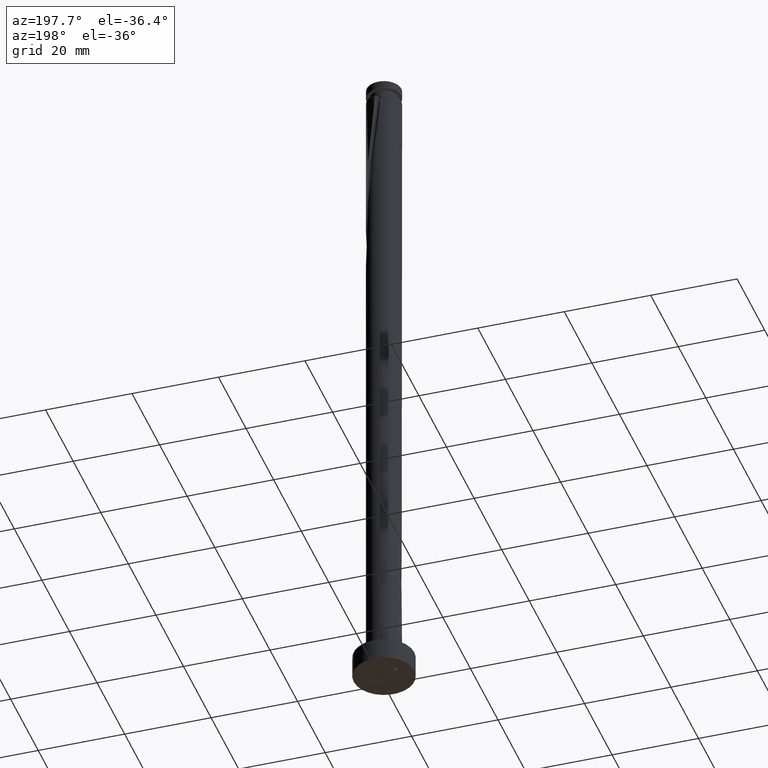
[diagram: clean part render]
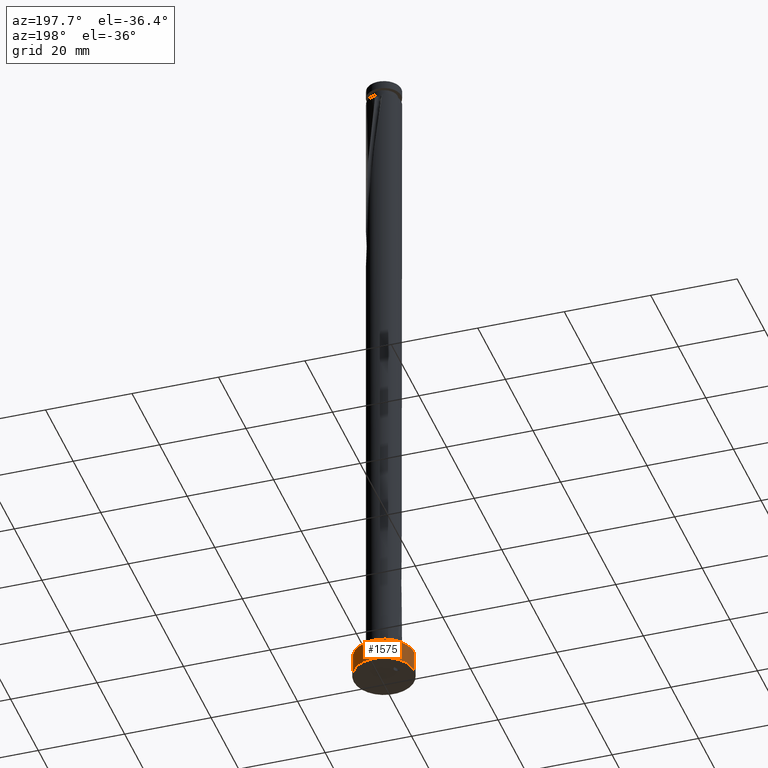
[diagram: same view with one face highlighted and labeled with its STEP entity id]
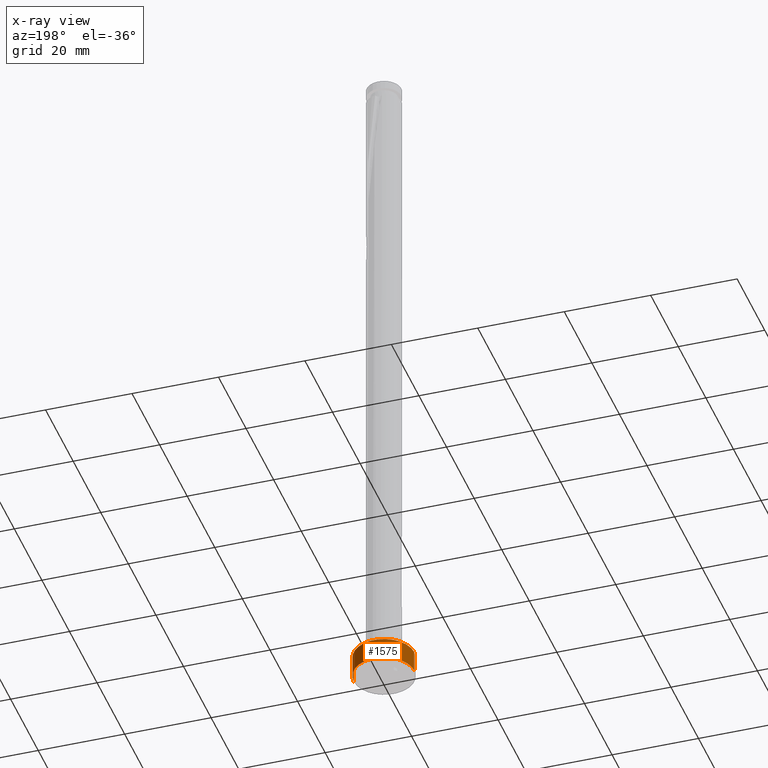
[diagram: x-ray of the same camera — body ghosted, the highlighted face saturated]
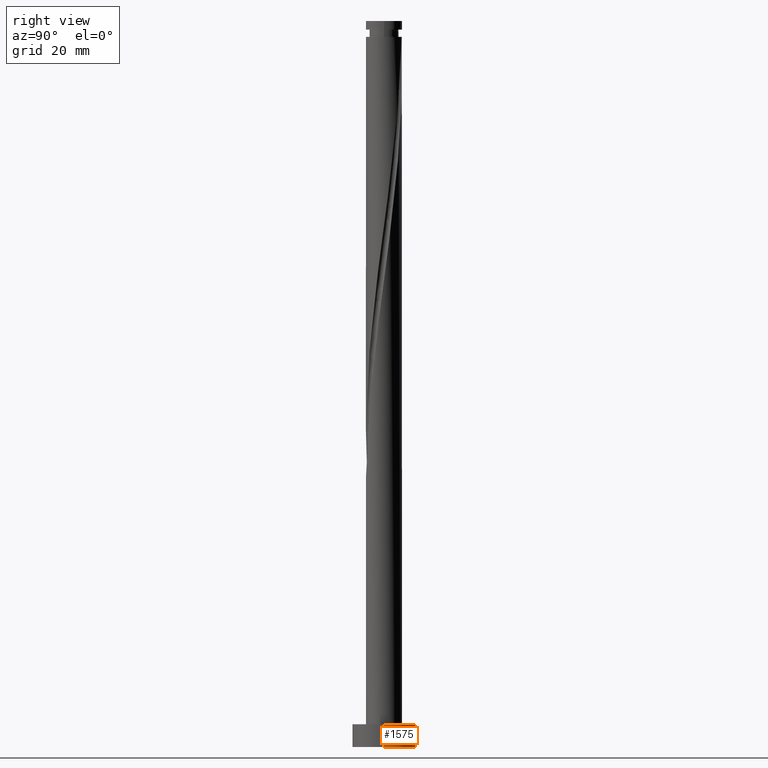
[diagram: same view with one face highlighted and labeled with its STEP entity id]
A machine part, auxiliary view. The second image highlights one B-rep face of the part: STEP entity #1575.
The next image is the same camera in x-ray: the body ghosted, the highlighted face saturated — about 0% of this face is hidden behind the body in this view.
A second angle (right view) of the same face is appended — the face is thin or edge-on in the first view.
In plain terms, the highlighted cylindrical surface (edge-blend (fillet) strip) has radius 7 mm, axis along (-0, -0, -1).
Its self-contained STEP definition (entity closure, byte-faithful):
#149 = DIRECTION ( 'NONE',  ( 1.000000000000000000, 0.000000000000000000, 0.000000000000000000 ) ) ;
#358 = CARTESIAN_POINT ( 'NONE',  ( 0.000000000000000000, 0.000000000000000000, 0.000000000000000000 ) ) ;
#411 = CARTESIAN_POINT ( 'NONE',  ( -7.000000000000000000, 0.000000000000000000, 0.000000000000000000 ) ) ;
#423 = LINE ( 'NONE', #649, #464 ) ;
#457 = VERTEX_POINT ( 'NONE', #411 ) ;
#464 = VECTOR ( 'NONE', #1718, 1000.000000000000000 ) ;
#594 = DIRECTION ( 'NONE',  ( 0.000000000000000000, 0.000000000000000000, 1.000000000000000000 ) ) ;
#597 = VECTOR ( 'NONE', #794, 1000.000000000000000 ) ;
#641 = EDGE_CURVE ( 'NONE', #2474, #1823, #1790, .T. ) ;
#649 = CARTESIAN_POINT ( 'NONE',  ( -7.000000000000000000, 0.000000000000000000, 5.000000000000000000 ) ) ;
#675 = EDGE_CURVE ( 'NONE', #2474, #2464, #2512, .T. ) ;
#688 = CIRCLE ( 'NONE', #826, 7.000000000000000000 ) ;
#777 = AXIS2_PLACEMENT_3D ( 'NONE', #2085, #2458, #1229 ) ;
#794 = DIRECTION ( 'NONE',  ( -0.000000000000000000, -0.000000000000000000, -1.000000000000000000 ) ) ;
#818 = EDGE_CURVE ( 'NONE', #2464, #457, #688, .T. ) ;
#826 = AXIS2_PLACEMENT_3D ( 'NONE', #358, #594, #149 ) ;
#1048 = CYLINDRICAL_SURFACE ( 'NONE', #2493, 7.000000000000000000 ) ;
#1061 = DIRECTION ( 'NONE',  ( -0.000000000000000000, -0.000000000000000000, -1.000000000000000000 ) ) ;
#1141 = EDGE_LOOP ( 'NONE', ( #1720, #2271, #1433, #2420 ) ) ;
#1157 = EDGE_CURVE ( 'NONE', #1823, #457, #423, .T. ) ;
#1229 = DIRECTION ( 'NONE',  ( 1.000000000000000000, 0.000000000000000000, 0.000000000000000000 ) ) ;
#1433 = ORIENTED_EDGE ( 'NONE', *, *, #818, .T. ) ;
#1557 = CARTESIAN_POINT ( 'NONE',  ( 7.000000000000000000, 8.572527594031473190E-16, 5.000000000000000000 ) ) ;
#1575 = ADVANCED_FACE ( 'NONE', ( #2357 ), #1048, .T. ) ;
#1718 = DIRECTION ( 'NONE',  ( -0.000000000000000000, -0.000000000000000000, -1.000000000000000000 ) ) ;
#1720 = ORIENTED_EDGE ( 'NONE', *, *, #641, .F. ) ;
#1790 = CIRCLE ( 'NONE', #777, 7.000000000000000000 ) ;
#1823 = VERTEX_POINT ( 'NONE', #2640 ) ;
#2085 = CARTESIAN_POINT ( 'NONE',  ( 0.000000000000000000, 0.000000000000000000, 5.000000000000000000 ) ) ;
#2109 = CARTESIAN_POINT ( 'NONE',  ( 0.000000000000000000, 0.000000000000000000, 5.000000000000000000 ) ) ;
#2152 = DIRECTION ( 'NONE',  ( -1.000000000000000000, 0.000000000000000000, 0.000000000000000000 ) ) ;
#2271 = ORIENTED_EDGE ( 'NONE', *, *, #675, .T. ) ;
#2357 = FACE_OUTER_BOUND ( 'NONE', #1141, .T. ) ;
#2420 = ORIENTED_EDGE ( 'NONE', *, *, #1157, .F. ) ;
#2458 = DIRECTION ( 'NONE',  ( 0.000000000000000000, 0.000000000000000000, 1.000000000000000000 ) ) ;
#2464 = VERTEX_POINT ( 'NONE', #2578 ) ;
#2474 = VERTEX_POINT ( 'NONE', #1557 ) ;
#2475 = CARTESIAN_POINT ( 'NONE',  ( 7.000000000000000000, 8.572527594031473190E-16, 5.000000000000000000 ) ) ;
#2493 = AXIS2_PLACEMENT_3D ( 'NONE', #2109, #1061, #2152 ) ;
#2512 = LINE ( 'NONE', #2475, #597 ) ;
#2578 = CARTESIAN_POINT ( 'NONE',  ( 7.000000000000000000, 8.572527594031473190E-16, 0.000000000000000000 ) ) ;
#2640 = CARTESIAN_POINT ( 'NONE',  ( -7.000000000000000000, 0.000000000000000000, 5.000000000000000000 ) ) ;